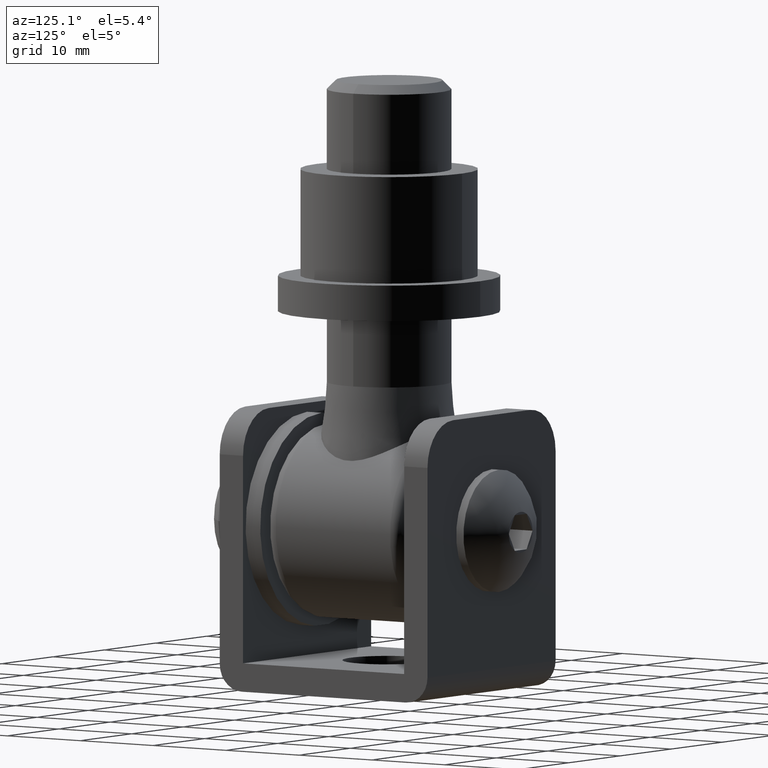
[diagram: clean part render]
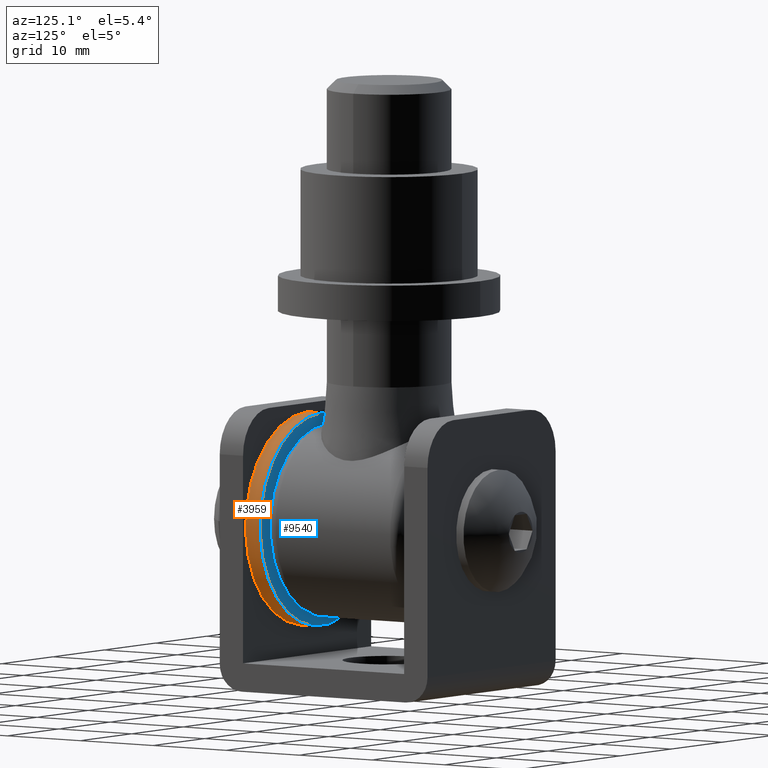
[diagram: same view with the hole feature highlighted: cylindrical wall and planar end face, labeled with their STEP entity ids]
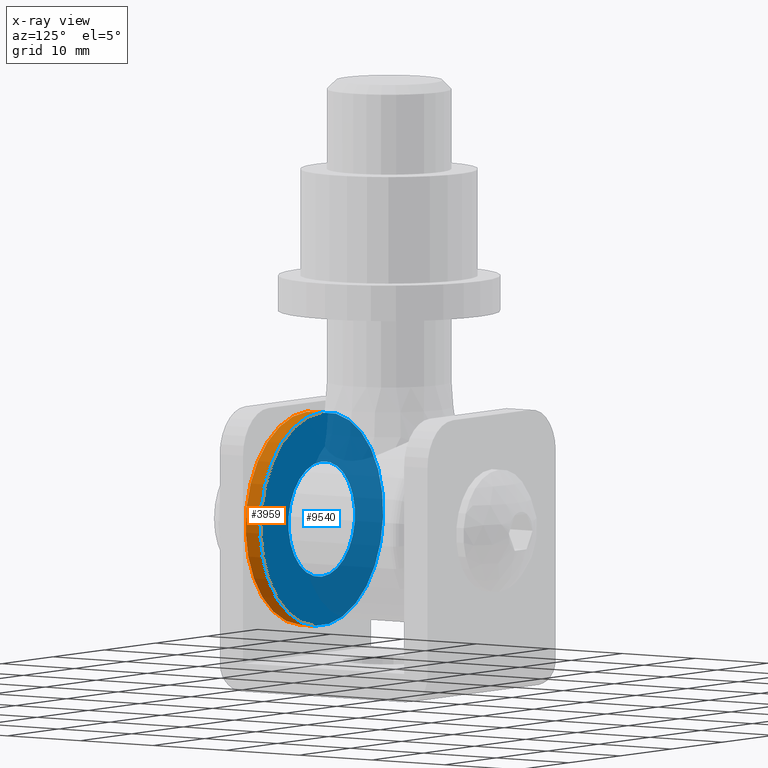
[diagram: x-ray of the same camera — body ghosted, the hole faces saturated]
A machine part, auxiliary view. The highlighted faces form one hole feature of diameter 24 mm: the cylindrical wall (entity #3959, orange) and its adjacent planar end face (entity #9540, blue) — they share a circular edge in the B-rep.
The next image is the same camera in x-ray (body ghosted, the hole faces saturated) — the bore reads through the body.
Wall:
#389 = CYLINDRICAL_SURFACE ( 'NONE', #7724, 12.00000000000000200 ) ;
#701 = FACE_OUTER_BOUND ( 'NONE', #2919, .T. ) ;
#1006 = FACE_OUTER_BOUND ( 'NONE', #5171, .T. ) ;
#1566 = CARTESIAN_POINT ( 'NONE',  ( 0.0000000000000000000, 1.000000000000000900, 12.00000000000000200 ) ) ;
#1721 = CARTESIAN_POINT ( 'NONE',  ( 0.0000000000000000000, 1.000000000000000900, 0.0000000000000000000 ) ) ;
#2014 = EDGE_CURVE ( 'NONE', #8945, #8945, #4191, .T. ) ;
#2397 = CARTESIAN_POINT ( 'NONE',  ( 0.0000000000000000000, -1.000000000000000900, 12.00000000000000200 ) ) ;
#2919 = EDGE_LOOP ( 'NONE', ( #6517 ) ) ;
#3959 = ADVANCED_FACE ( 'NONE', ( #1006, #701 ), #389, .T. ) ;
#4191 = CIRCLE ( 'NONE', #4952, 12.00000000000000200 ) ;
#4952 = AXIS2_PLACEMENT_3D ( 'NONE', #5659, #12704, #8666 ) ;
#5171 = EDGE_LOOP ( 'NONE', ( #6425 ) ) ;
#5659 = CARTESIAN_POINT ( 'NONE',  ( 0.0000000000000000000, -1.000000000000000900, 0.0000000000000000000 ) ) ;
#5669 = VERTEX_POINT ( 'NONE', #1566 ) ;
#6223 = CIRCLE ( 'NONE', #11199, 12.00000000000000200 ) ;
#6425 = ORIENTED_EDGE ( 'NONE', *, *, #9374, .F. ) ;
#6517 = ORIENTED_EDGE ( 'NONE', *, *, #2014, .T. ) ;
#7724 = AXIS2_PLACEMENT_3D ( 'NONE', #1721, #12675, #10567 ) ;
#8666 = DIRECTION ( 'NONE',  ( 0.0000000000000000000, 0.0000000000000000000, 1.000000000000000000 ) ) ;
#8945 = VERTEX_POINT ( 'NONE', #2397 ) ;
#9374 = EDGE_CURVE ( 'NONE', #5669, #5669, #6223, .T. ) ;
#10567 = DIRECTION ( 'NONE',  ( 0.0000000000000000000, 0.0000000000000000000, -1.000000000000000000 ) ) ;
#10742 = CARTESIAN_POINT ( 'NONE',  ( 0.0000000000000000000, 1.000000000000000900, 0.0000000000000000000 ) ) ;
#11199 = AXIS2_PLACEMENT_3D ( 'NONE', #10742, #11914, #11871 ) ;
#11871 = DIRECTION ( 'NONE',  ( 0.0000000000000000000, 0.0000000000000000000, 1.000000000000000000 ) ) ;
#11914 = DIRECTION ( 'NONE',  ( 0.0000000000000000000, 1.000000000000000000, 0.0000000000000000000 ) ) ;
#12675 = DIRECTION ( 'NONE',  ( -0.0000000000000000000, -1.000000000000000000, -0.0000000000000000000 ) ) ;
#12704 = DIRECTION ( 'NONE',  ( 0.0000000000000000000, 1.000000000000000000, 0.0000000000000000000 ) ) ;
End face:
#32 = AXIS2_PLACEMENT_3D ( 'NONE', #6983, #95, #4094 ) ;
#95 = DIRECTION ( 'NONE',  ( 0.0000000000000000000, 1.000000000000000000, 0.0000000000000000000 ) ) ;
#562 = DIRECTION ( 'NONE',  ( 0.0000000000000000000, 1.000000000000000000, 0.0000000000000000000 ) ) ;
#1566 = CARTESIAN_POINT ( 'NONE',  ( 0.0000000000000000000, 1.000000000000000900, 12.00000000000000200 ) ) ;
#1840 = ORIENTED_EDGE ( 'NONE', *, *, #9374, .T. ) ;
#1951 = ORIENTED_EDGE ( 'NONE', *, *, #4517, .F. ) ;
#1970 = FACE_OUTER_BOUND ( 'NONE', #4932, .T. ) ;
#3559 = FACE_BOUND ( 'NONE', #5086, .T. ) ;
#4094 = DIRECTION ( 'NONE',  ( 0.0000000000000000000, -0.0000000000000000000, 1.000000000000000000 ) ) ;
#4517 = EDGE_CURVE ( 'NONE', #11643, #11643, #11053, .T. ) ;
#4932 = EDGE_LOOP ( 'NONE', ( #1840 ) ) ;
#5086 = EDGE_LOOP ( 'NONE', ( #1951 ) ) ;
#5669 = VERTEX_POINT ( 'NONE', #1566 ) ;
#6223 = CIRCLE ( 'NONE', #11199, 12.00000000000000200 ) ;
#6983 = CARTESIAN_POINT ( 'NONE',  ( 0.0000000000000000000, 1.000000000000000900, 0.0000000000000000000 ) ) ;
#7224 = AXIS2_PLACEMENT_3D ( 'NONE', #7479, #562, #10496 ) ;
#7479 = CARTESIAN_POINT ( 'NONE',  ( 0.0000000000000000000, 1.000000000000000900, 0.0000000000000000000 ) ) ;
#7890 = PLANE ( 'NONE',  #32 ) ;
#8220 = CARTESIAN_POINT ( 'NONE',  ( 0.0000000000000000000, 1.000000000000000900, 6.500000000000000900 ) ) ;
#9374 = EDGE_CURVE ( 'NONE', #5669, #5669, #6223, .T. ) ;
#9540 = ADVANCED_FACE ( 'NONE', ( #1970, #3559 ), #7890, .T. ) ;
#10496 = DIRECTION ( 'NONE',  ( 0.0000000000000000000, 0.0000000000000000000, 1.000000000000000000 ) ) ;
#10742 = CARTESIAN_POINT ( 'NONE',  ( 0.0000000000000000000, 1.000000000000000900, 0.0000000000000000000 ) ) ;
#11053 = CIRCLE ( 'NONE', #7224, 6.500000000000000900 ) ;
#11199 = AXIS2_PLACEMENT_3D ( 'NONE', #10742, #11914, #11871 ) ;
#11643 = VERTEX_POINT ( 'NONE', #8220 ) ;
#11871 = DIRECTION ( 'NONE',  ( 0.0000000000000000000, 0.0000000000000000000, 1.000000000000000000 ) ) ;
#11914 = DIRECTION ( 'NONE',  ( 0.0000000000000000000, 1.000000000000000000, 0.0000000000000000000 ) ) ;